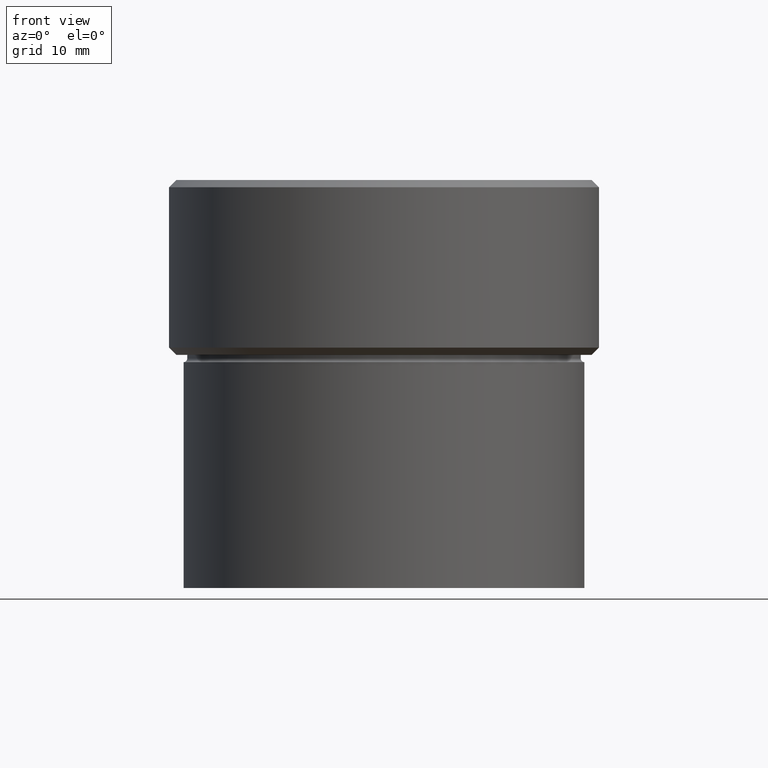
[diagram: clean part render]
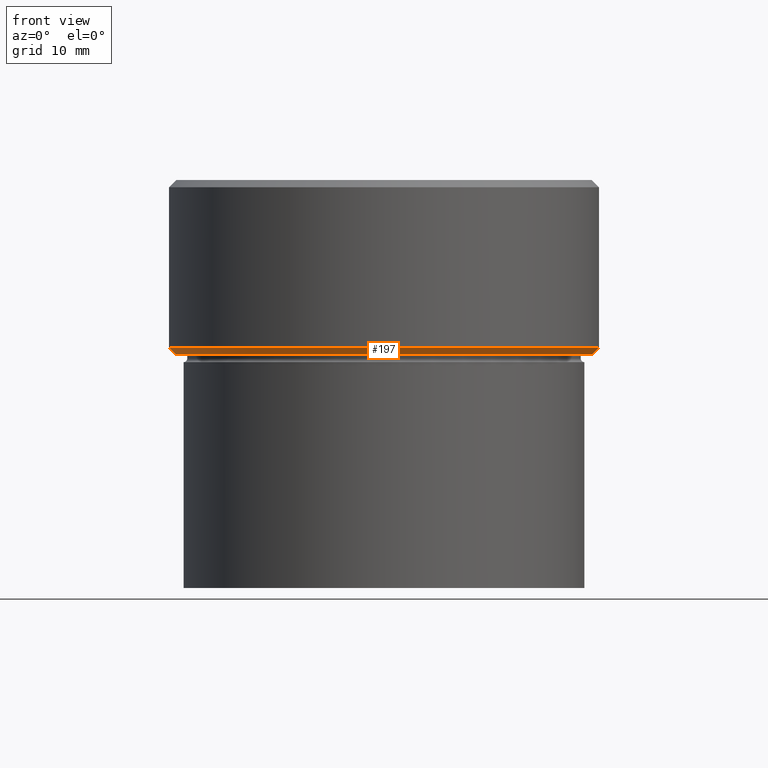
[diagram: same view with one face highlighted and labeled with its STEP entity id]
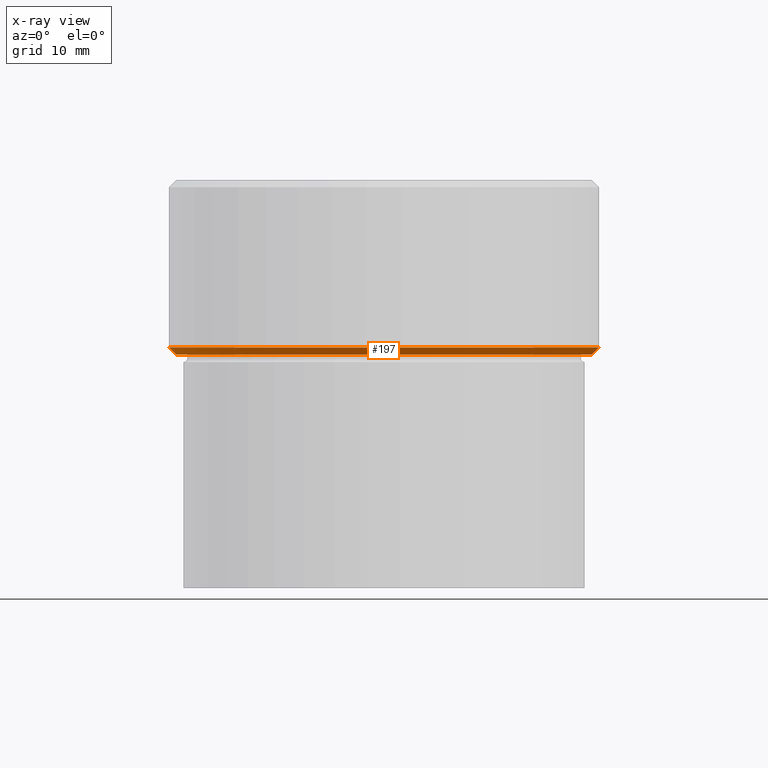
[diagram: x-ray of the same camera — body ghosted, the highlighted face saturated]
A machine part, front view. The second image highlights one B-rep face of the part: STEP entity #197.
The next image is the same camera in x-ray: the body ghosted, the highlighted face saturated — about 0% of this face is hidden behind the body in this view.
In plain terms, the highlighted conical surface has half-angle 45 deg.
Its self-contained STEP definition (entity closure, byte-faithful):
#4 = EDGE_CURVE ( 'NONE', #325, #446, #497, .T. ) ;
#8 = ORIENTED_EDGE ( 'NONE', *, *, #162, .F. ) ;
#15 = AXIS2_PLACEMENT_3D ( 'NONE', #453, #74, #250 ) ;
#51 = CARTESIAN_POINT ( 'NONE',  ( 0.000000000000000000, 0.000000000000000000, -24.00000000000000000 ) ) ;
#74 = DIRECTION ( 'NONE',  ( -0.000000000000000000, -0.000000000000000000, 1.000000000000000000 ) ) ;
#82 = CARTESIAN_POINT ( 'NONE',  ( 29.50000000000000000, 0.000000000000000000, -22.99999999999999289 ) ) ;
#116 = ORIENTED_EDGE ( 'NONE', *, *, #4, .F. ) ;
#136 = DIRECTION ( 'NONE',  ( 1.000000000000000000, 0.000000000000000000, 0.000000000000000000 ) ) ;
#152 = AXIS2_PLACEMENT_3D ( 'NONE', #51, #308, #344 ) ;
#161 = ORIENTED_EDGE ( 'NONE', *, *, #385, .T. ) ;
#162 = EDGE_CURVE ( 'NONE', #483, #327, #374, .T. ) ;
#170 = EDGE_LOOP ( 'NONE', ( #356, #8, #161, #116 ) ) ;
#175 = CONICAL_SURFACE ( 'NONE', #225, 29.50000000000000000, 0.7853981633974517207 ) ;
#197 = ADVANCED_FACE ( 'NONE', ( #462 ), #175, .T. ) ;
#207 = CARTESIAN_POINT ( 'NONE',  ( -29.50000000000000000, 3.612708057484691604E-15, -22.99999999999999289 ) ) ;
#212 = VECTOR ( 'NONE', #247, 1000.000000000000114 ) ;
#225 = AXIS2_PLACEMENT_3D ( 'NONE', #267, #432, #136 ) ;
#242 = CARTESIAN_POINT ( 'NONE',  ( -29.50000000000000000, 3.612708057484691604E-15, -22.99999999999999289 ) ) ;
#244 = CARTESIAN_POINT ( 'NONE',  ( 29.50000000000000000, 0.000000000000000000, -22.99999999999999289 ) ) ;
#247 = DIRECTION ( 'NONE',  ( -0.7071067811865500152, 8.659560562354963673E-17, 0.7071067811865451302 ) ) ;
#250 = DIRECTION ( 'NONE',  ( -1.000000000000000000, 0.000000000000000000, 0.000000000000000000 ) ) ;
#267 = CARTESIAN_POINT ( 'NONE',  ( 0.000000000000000000, 0.000000000000000000, -22.99999999999999289 ) ) ;
#296 = VECTOR ( 'NONE', #492, 1000.000000000000114 ) ;
#308 = DIRECTION ( 'NONE',  ( 0.000000000000000000, 0.000000000000000000, -1.000000000000000000 ) ) ;
#325 = VERTEX_POINT ( 'NONE', #242 ) ;
#327 = VERTEX_POINT ( 'NONE', #436 ) ;
#344 = DIRECTION ( 'NONE',  ( -1.000000000000000000, 0.000000000000000000, 0.000000000000000000 ) ) ;
#356 = ORIENTED_EDGE ( 'NONE', *, *, #414, .F. ) ;
#369 = CARTESIAN_POINT ( 'NONE',  ( 28.49999999999998224, 0.000000000000000000, -24.00000000000000000 ) ) ;
#374 = CIRCLE ( 'NONE', #152, 28.49999999999998224 ) ;
#385 = EDGE_CURVE ( 'NONE', #483, #446, #454, .T. ) ;
#413 = LINE ( 'NONE', #207, #212 ) ;
#414 = EDGE_CURVE ( 'NONE', #327, #325, #413, .T. ) ;
#432 = DIRECTION ( 'NONE',  ( -0.000000000000000000, -0.000000000000000000, 1.000000000000000000 ) ) ;
#436 = CARTESIAN_POINT ( 'NONE',  ( -28.49999999999998224, 3.551475717527322452E-15, -24.00000000000000000 ) ) ;
#446 = VERTEX_POINT ( 'NONE', #82 ) ;
#453 = CARTESIAN_POINT ( 'NONE',  ( 0.000000000000000000, 0.000000000000000000, -22.99999999999999289 ) ) ;
#454 = LINE ( 'NONE', #244, #296 ) ;
#462 = FACE_OUTER_BOUND ( 'NONE', #170, .T. ) ;
#483 = VERTEX_POINT ( 'NONE', #369 ) ;
#492 = DIRECTION ( 'NONE',  ( 0.7071067811865500152, 0.000000000000000000, 0.7071067811865451302 ) ) ;
#497 = CIRCLE ( 'NONE', #15, 29.50000000000000000 ) ;